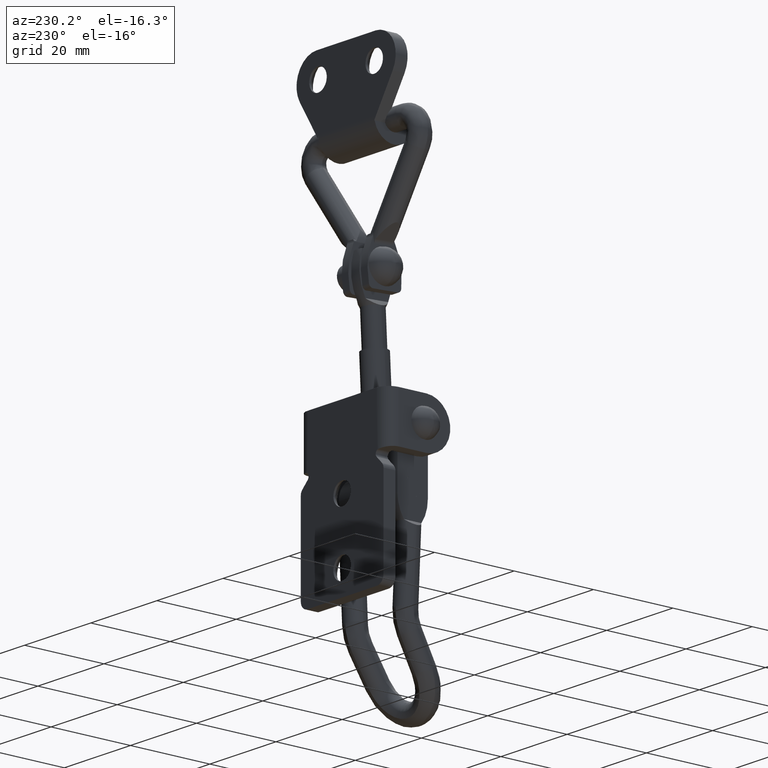
[diagram: clean part render]
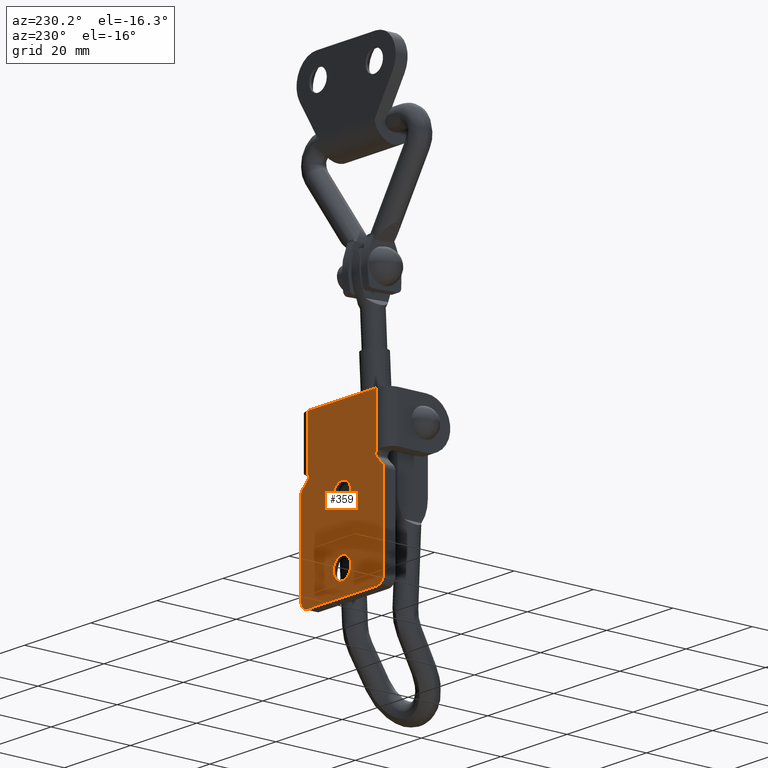
[diagram: same view with one face highlighted and labeled with its STEP entity id]
A machine part, auxiliary view. The second image highlights one B-rep face of the part: STEP entity #359.
In plain terms, the highlighted planar face has unit normal (0, 1, 0).
Its self-contained STEP definition (entity closure, byte-faithful):
#359=ADVANCED_FACE('',(#1487,#1488,#1489),#1486,.T.);
#1486=PLANE('',#3435);
#1487=FACE_OUTER_BOUND('',#3436,.T.);
#1488=FACE_BOUND('',#3437,.T.);
#1489=FACE_BOUND('',#3438,.T.);
#3432=CARTESIAN_POINT('',(-1.50000000000E+01,-4.64979166281E-11,-4.00000000000E+00));
#3433=DIRECTION('',(0.00000000000E+00,1.00000000000E+00,0.00000000000E+00));
#3434=DIRECTION('',(0.00000000000E+00,0.00000000000E+00,1.00000000000E+00));
#3435=AXIS2_PLACEMENT_3D('',#3432,#3433,#3434);
#3436=EDGE_LOOP('',(#5014,#5015,#5016,#5017,#5018,#5019,#5020,#5021,#5022,#5023,#5024,#5025,#5026,#5027));
#3437=EDGE_LOOP('',(#5028,#5029));
#3438=EDGE_LOOP('',(#5030,#5031));
#5014=ORIENTED_EDGE('',*,*,#5861,.T.);
#5015=ORIENTED_EDGE('',*,*,#5862,.T.);
#5016=ORIENTED_EDGE('',*,*,#5863,.T.);
#5017=ORIENTED_EDGE('',*,*,#5864,.T.);
#5018=ORIENTED_EDGE('',*,*,#5865,.F.);
#5019=ORIENTED_EDGE('',*,*,#5866,.T.);
#5020=ORIENTED_EDGE('',*,*,#5867,.F.);
#5021=ORIENTED_EDGE('',*,*,#5868,.T.);
#5022=ORIENTED_EDGE('',*,*,#5869,.F.);
#5023=ORIENTED_EDGE('',*,*,#5870,.T.);
#5024=ORIENTED_EDGE('',*,*,#5871,.F.);
#5025=ORIENTED_EDGE('',*,*,#5872,.T.);
#5026=ORIENTED_EDGE('',*,*,#5873,.T.);
#5027=ORIENTED_EDGE('',*,*,#5874,.T.);
#5028=ORIENTED_EDGE('',*,*,#5875,.T.);
#5029=ORIENTED_EDGE('',*,*,#5876,.T.);
#5030=ORIENTED_EDGE('',*,*,#5877,.T.);
#5031=ORIENTED_EDGE('',*,*,#5878,.T.);
#5861=EDGE_CURVE('',#7807,#7808,#7809,.T.);
#5862=EDGE_CURVE('',#7808,#7815,#7816,.T.);
#5863=EDGE_CURVE('',#7815,#7822,#7823,.T.);
#5864=EDGE_CURVE('',#7822,#7829,#7830,.T.);
#5865=EDGE_CURVE('',#7836,#7829,#7837,.T.);
#5866=EDGE_CURVE('',#7836,#7843,#7844,.T.);
#5867=EDGE_CURVE('',#7850,#7843,#7851,.T.);
#5868=EDGE_CURVE('',#7850,#7857,#7858,.T.);
#5869=EDGE_CURVE('',#7864,#7857,#7865,.T.);
#5870=EDGE_CURVE('',#7864,#7871,#7872,.T.);
#5871=EDGE_CURVE('',#7878,#7871,#7879,.T.);
#5872=EDGE_CURVE('',#7878,#7885,#7886,.T.);
#5873=EDGE_CURVE('',#7885,#7892,#7893,.T.);
#5874=EDGE_CURVE('',#7892,#7807,#7899,.T.);
#5875=EDGE_CURVE('',#7905,#7906,#7907,.T.);
#5876=EDGE_CURVE('',#7906,#7905,#7913,.T.);
#5877=EDGE_CURVE('',#7919,#7920,#7921,.T.);
#5878=EDGE_CURVE('',#7920,#7919,#7927,.T.);
#7807=VERTEX_POINT('',#11104);
#7808=VERTEX_POINT('',#11105);
#7809=LINE('',#11106,#11107);
#7815=VERTEX_POINT('',#11109);
#7816=LINE('',#11110,#11111);
#7822=VERTEX_POINT('',#11113);
#7823=CIRCLE('',#11117,8.76710514268E-01);
#7829=VERTEX_POINT('',#11118);
#7830=LINE('',#11119,#11120);
#7836=VERTEX_POINT('',#11122);
#7837=CIRCLE('',#11126,1.50000000000E+00);
#7843=VERTEX_POINT('',#11127);
#7844=LINE('',#11128,#11129);
#7850=VERTEX_POINT('',#11131);
#7851=CIRCLE('',#11135,2.00000000000E+00);
#7857=VERTEX_POINT('',#11136);
#7858=LINE('',#11137,#11138);
#7864=VERTEX_POINT('',#11140);
#7865=CIRCLE('',#11144,2.00000000000E+00);
#7871=VERTEX_POINT('',#11145);
#7872=LINE('',#11146,#11147);
#7878=VERTEX_POINT('',#11149);
#7879=CIRCLE('',#11153,1.50000000000E+00);
#7885=VERTEX_POINT('',#11154);
#7886=LINE('',#11155,#11156);
#7892=VERTEX_POINT('',#11158);
#7893=CIRCLE('',#11162,8.76710514268E-01);
#7899=LINE('',#11163,#11164);
#7905=VERTEX_POINT('',#11166);
#7906=VERTEX_POINT('',#11167);
#7907=CIRCLE('',#11171,2.65000000000E+00);
#7913=CIRCLE('',#11175,2.65000000000E+00);
#7919=VERTEX_POINT('',#11176);
#7920=VERTEX_POINT('',#11177);
#7921=CIRCLE('',#11181,2.65000000000E+00);
#7927=CIRCLE('',#11185,2.65000000000E+00);
#11104=CARTESIAN_POINT('',(-1.05000000000E+01,-4.65183447318E-11,4.00000000000E+01));
#11105=CARTESIAN_POINT('',(1.05000000000E+01,-4.65183447318E-11,4.00000000000E+01));
#11106=CARTESIAN_POINT('',(-1.05000000000E+01,-4.65183447318E-11,4.00000000000E+01));
#11107=VECTOR('',#11108,2.10000000000E+01);
#11108=DIRECTION('',(1.00000000000E+00,0.00000000000E+00,0.00000000000E+00));
#11109=CARTESIAN_POINT('',(1.05000000000E+01,-4.65183447318E-11,2.73745118808E+01));
#11110=CARTESIAN_POINT('',(1.05000000000E+01,-4.64979166281E-11,4.00000000000E+01));
#11111=VECTOR('',#11112,1.26254881192E+01);
#11112=DIRECTION('',(0.00000000000E+00,0.00000000000E+00,-1.00000000000E+00));
#11113=CARTESIAN_POINT('',(1.04143651104E+01,-4.65183447318E-11,2.60462382804E+01));
#11114=CARTESIAN_POINT('',(1.10267105143E+01,-4.65183447318E-11,2.66736571455E+01));
#11115=DIRECTION('',(0.00000000000E+00,-1.00000000000E+00,0.00000000000E+00));
#11116=DIRECTION('',(-0.00000000000E+00,-0.00000000000E+00,-1.00000000000E+00));
#11117=AXIS2_PLACEMENT_3D('',#11114,#11115,#11116);
#11118=CARTESIAN_POINT('',(1.20476868827E+01,-4.65183447318E-11,2.44521563426E+01));
#11119=CARTESIAN_POINT('',(1.04143651104E+01,-4.65183447318E-11,2.60462382804E+01));
#11120=VECTOR('',#11121,2.28228771982E+00);
#11121=DIRECTION('',(7.15651124126E-01,0.00000000000E+00,-6.98457921809E-01));
#11122=CARTESIAN_POINT('',(1.25000000000E+01,-4.65183447318E-11,2.33786796564E+01));
#11123=CARTESIAN_POINT('',(1.10000000000E+01,-4.65183447318E-11,2.33786796564E+01));
#11124=DIRECTION('',(0.00000000000E+00,-1.00000000000E+00,0.00000000000E+00));
#11125=DIRECTION('',(-0.00000000000E+00,-0.00000000000E+00,-1.00000000000E+00));
#11126=AXIS2_PLACEMENT_3D('',#11123,#11124,#11125);
#11127=CARTESIAN_POINT('',(1.25000000000E+01,-4.65183447318E-11,2.00000000000E+00));
#11128=CARTESIAN_POINT('',(1.25000000000E+01,-4.65183447318E-11,2.33786796564E+01));
#11129=VECTOR('',#11130,2.13786796564E+01);
#11130=DIRECTION('',(0.00000000000E+00,0.00000000000E+00,-1.00000000000E+00));
#11131=CARTESIAN_POINT('',(1.05000000000E+01,-4.65183447318E-11,0.00000000000E+00));
#11132=CARTESIAN_POINT('',(1.05000000000E+01,-4.65183447318E-11,2.00000000000E+00));
#11133=DIRECTION('',(0.00000000000E+00,-1.00000000000E+00,0.00000000000E+00));
#11134=DIRECTION('',(-0.00000000000E+00,-0.00000000000E+00,-1.00000000000E+00));
#11135=AXIS2_PLACEMENT_3D('',#11132,#11133,#11134);
#11136=CARTESIAN_POINT('',(-1.05000000000E+01,-4.65183447318E-11,0.00000000000E+00));
#11137=CARTESIAN_POINT('',(1.05000000000E+01,-4.65183447318E-11,0.00000000000E+00));
#11138=VECTOR('',#11139,2.10000000000E+01);
#11139=DIRECTION('',(-1.00000000000E+00,0.00000000000E+00,0.00000000000E+00));
#11140=CARTESIAN_POINT('',(-1.25000000000E+01,-4.65183447318E-11,2.00000000000E+00));
#11141=CARTESIAN_POINT('',(-1.05000000000E+01,-4.65183447318E-11,2.00000000000E+00));
#11142=DIRECTION('',(0.00000000000E+00,-1.00000000000E+00,0.00000000000E+00));
#11143=DIRECTION('',(-0.00000000000E+00,-0.00000000000E+00,-1.00000000000E+00));
#11144=AXIS2_PLACEMENT_3D('',#11141,#11142,#11143);
#11145=CARTESIAN_POINT('',(-1.25000000000E+01,-4.65183447318E-11,2.33786796564E+01));
#11146=CARTESIAN_POINT('',(-1.25000000000E+01,-4.65183447318E-11,2.00000000000E+00));
#11147=VECTOR('',#11148,2.13786796564E+01);
#11148=DIRECTION('',(0.00000000000E+00,0.00000000000E+00,1.00000000000E+00));
#11149=CARTESIAN_POINT('',(-1.20476868827E+01,-4.65183447318E-11,2.44521563426E+01));
#11150=CARTESIAN_POINT('',(-1.10000000000E+01,-4.65183447318E-11,2.33786796564E+01));
#11151=DIRECTION('',(0.00000000000E+00,-1.00000000000E+00,0.00000000000E+00));
#11152=DIRECTION('',(-0.00000000000E+00,-0.00000000000E+00,-1.00000000000E+00));
#11153=AXIS2_PLACEMENT_3D('',#11150,#11151,#11152);
#11154=CARTESIAN_POINT('',(-1.04143651104E+01,-4.65183447318E-11,2.60462382804E+01));
#11155=CARTESIAN_POINT('',(-1.20476868827E+01,-4.65183447318E-11,2.44521563426E+01));
#11156=VECTOR('',#11157,2.28228771982E+00);
#11157=DIRECTION('',(7.15651124126E-01,0.00000000000E+00,6.98457921809E-01));
#11158=CARTESIAN_POINT('',(-1.05000000000E+01,-4.65183447318E-11,2.73745118808E+01));
#11159=CARTESIAN_POINT('',(-1.10267105143E+01,-4.65183447318E-11,2.66736571455E+01));
#11160=DIRECTION('',(0.00000000000E+00,-1.00000000000E+00,0.00000000000E+00));
#11161=DIRECTION('',(-0.00000000000E+00,-0.00000000000E+00,-1.00000000000E+00));
#11162=AXIS2_PLACEMENT_3D('',#11159,#11160,#11161);
#11163=CARTESIAN_POINT('',(-1.05000000000E+01,-4.64979166281E-11,2.73745118808E+01));
#11164=VECTOR('',#11165,1.26254881192E+01);
#11165=DIRECTION('',(0.00000000000E+00,0.00000000000E+00,1.00000000000E+00));
#11166=CARTESIAN_POINT('',(0.00000000000E+00,-4.65183447318E-11,2.36500000000E+01));
#11167=CARTESIAN_POINT('',(2.96059473233E-16,-4.65183447318E-11,1.83500000000E+01));
#11168=CARTESIAN_POINT('',(0.00000000000E+00,-4.65183447318E-11,2.10000000000E+01));
#11169=DIRECTION('',(-0.00000000000E+00,-1.00000000000E+00,0.00000000000E+00));
#11170=DIRECTION('',(-1.22460635382E-16,0.00000000000E+00,1.00000000000E+00));
#11171=AXIS2_PLACEMENT_3D('',#11168,#11169,#11170);
#11172=CARTESIAN_POINT('',(0.00000000000E+00,-4.65183447318E-11,2.10000000000E+01));
#11173=DIRECTION('',(-0.00000000000E+00,-1.00000000000E+00,0.00000000000E+00));
#11174=DIRECTION('',(-1.22460635382E-16,0.00000000000E+00,1.00000000000E+00));
#11175=AXIS2_PLACEMENT_3D('',#11172,#11173,#11174);
#11176=CARTESIAN_POINT('',(0.00000000000E+00,-4.65183447318E-11,8.65000000000E+00));
#11177=CARTESIAN_POINT('',(2.96059473233E-16,-4.65183447318E-11,3.35000000000E+00));
#11178=CARTESIAN_POINT('',(0.00000000000E+00,-4.65183447318E-11,6.00000000000E+00));
#11179=DIRECTION('',(-0.00000000000E+00,-1.00000000000E+00,0.00000000000E+00));
#11180=DIRECTION('',(-1.22460635382E-16,0.00000000000E+00,1.00000000000E+00));
#11181=AXIS2_PLACEMENT_3D('',#11178,#11179,#11180);
#11182=CARTESIAN_POINT('',(0.00000000000E+00,-4.65183447318E-11,6.00000000000E+00));
#11183=DIRECTION('',(-0.00000000000E+00,-1.00000000000E+00,0.00000000000E+00));
#11184=DIRECTION('',(-1.22460635382E-16,0.00000000000E+00,1.00000000000E+00));
#11185=AXIS2_PLACEMENT_3D('',#11182,#11183,#11184);